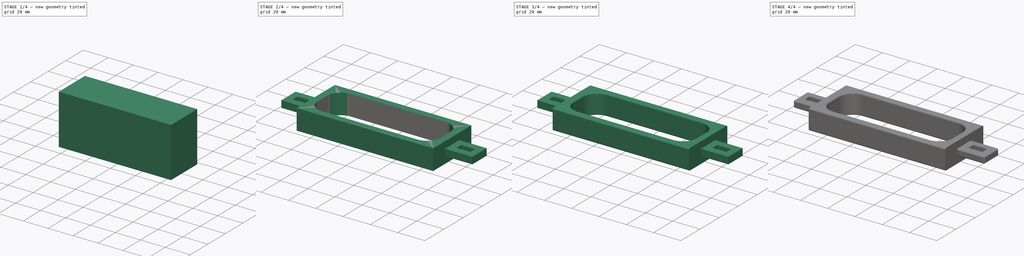
[diagram: build sequence overview — one tinted view per stage of 4, left to right]
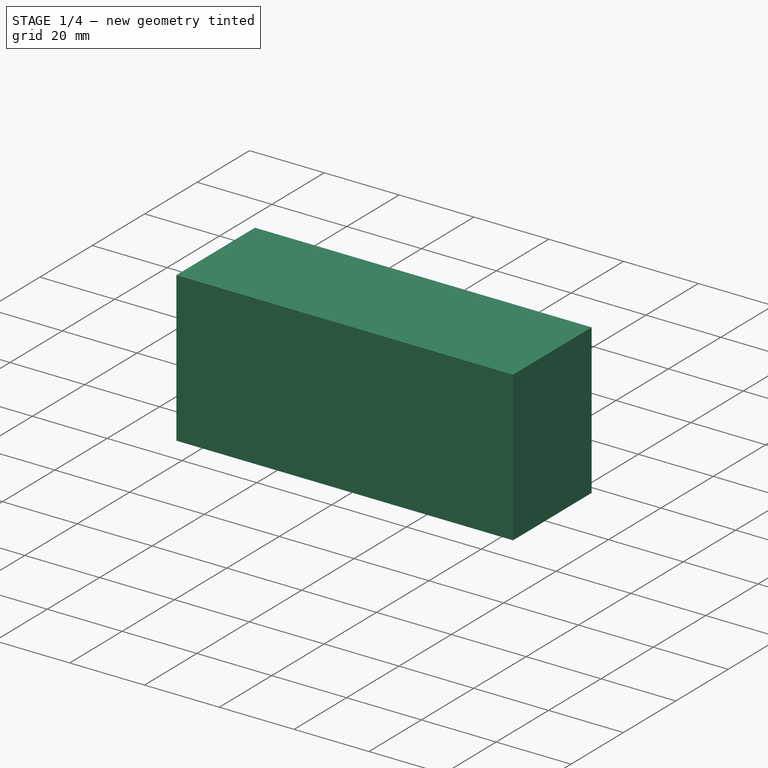
[diagram: stage 1 of 4 — iso view after this stage's code; geometry added in this stage tinted green]
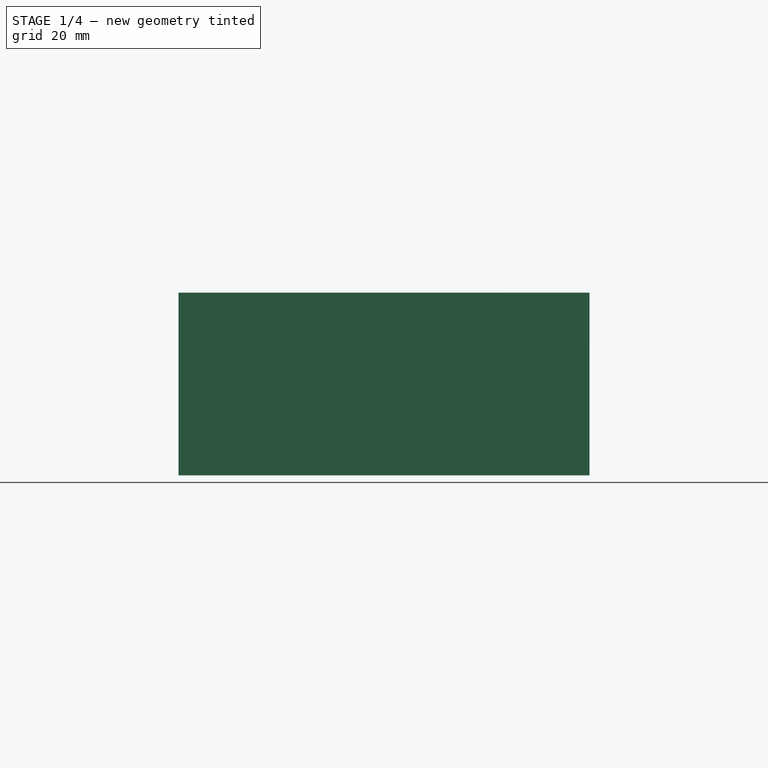
[diagram: stage 1 of 4 — front view after this stage's code; geometry added in this stage tinted green]
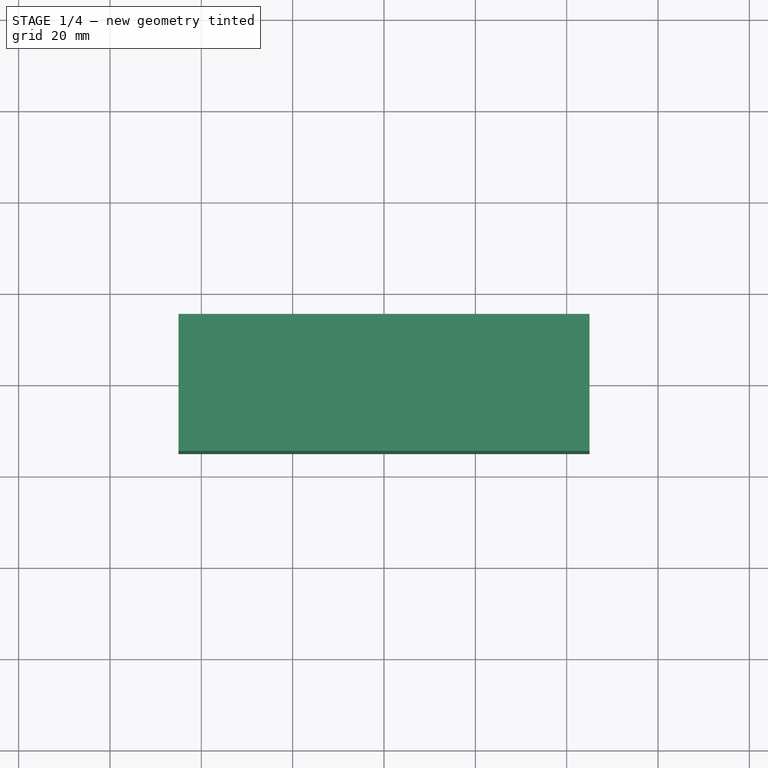
[diagram: stage 1 of 4 — top view after this stage's code; geometry added in this stage tinted green]
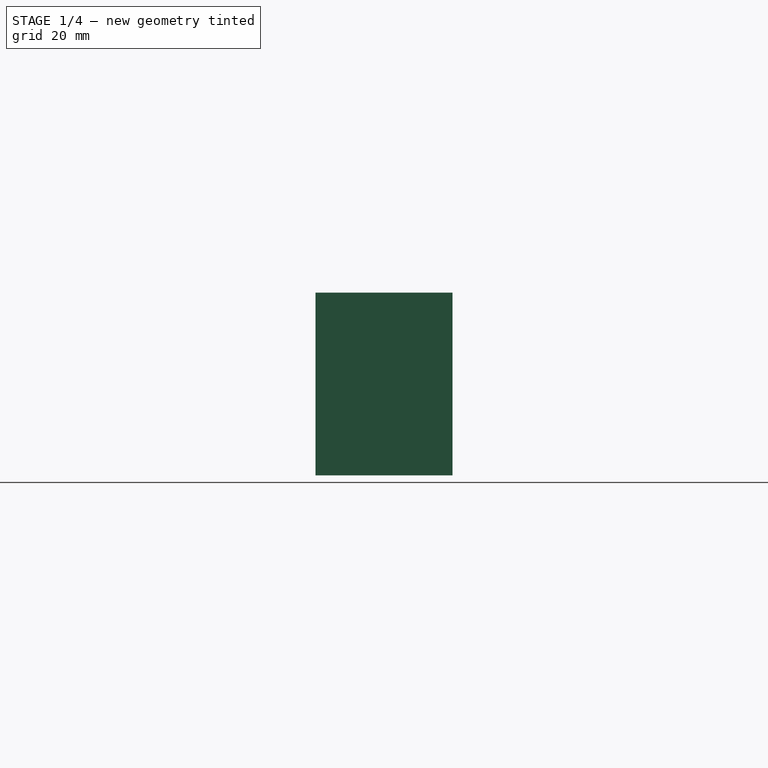
[diagram: stage 1 of 4 — right view after this stage's code; geometry added in this stage tinted green]
FCSTD DOCUMENT  (FreeCAD 1.0R39285 (Git))
Label: brace
License: All rights reserved
LicenseURL: https://en.wikipedia.org/wiki/All_rights_reserved
objects: Part::Fillet×5, Sketcher::SketchObject×3, Part::Extrusion×3, Part::Cut×1, Part::MultiFuse×1
note: 16 computed .brp shape members not serialized (recipe doc carries the construction recipe); baked Part::Feature solids carry a one-line shape summary decoded from their .brp
EXTERNAL_REF file=dims.FCStd obj=Spreadsheet

FEATURE [Sketcher::SketchObject] Sketch
  ArcFitTolerance = 1e-06
  FullyConstrained = true
  MakeInternals = false
  sketch-geometry (4):
    g0: LineSegment StartX=-50 StartY=-20 StartZ=0 EndX=50 EndY=-20 EndZ=0
    g1: LineSegment StartX=50 StartY=20 StartZ=0 EndX=-50 EndY=20 EndZ=0
    g2: LineSegment StartX=50 StartY=20 StartZ=0 EndX=50 EndY=-20 EndZ=0
    g3: LineSegment StartX=-50 StartY=20 StartZ=0 EndX=-50 EndY=-20 EndZ=0
  constraints (10):
    c: Horizontal(g0)
    c: Symmetric(g0,g1,g-1)
    c: Symmetric(g1,g1,g-2)
    c: DistanceX(g1,g1) = 100
    c: Coincident(g2,g1)
    c: Coincident(g2,g0)
    c: Coincident(g3,g1)
    c: Coincident(g3,g0)
    c: Vertical(g3)
    c: DistanceY(g3,g3) = 40
FEATURE [Sketcher::SketchObject] Sketch001
  ArcFitTolerance = 1e-06
  AttachmentSupport = -> [Sketch]
  ExternalGeometry = -> [Sketch]
  FullyConstrained = true
  MakeInternals = false
  MapMode = 2
  expr: Constraints[38] = dims#Spreadsheet.tab_height
  expr: Constraints[39] = dims#Spreadsheet.thickness
  expr: Constraints[40] = dims#Spreadsheet.thickness
  expr: Constraints[41] = dims#Spreadsheet.thickness * 3
  expr: Constraints[42] = dims#Spreadsheet.tab_height + dims#Spreadsheet.thickness * 2
  sketch-geometry (16):
    g0: LineSegment StartX=-70 StartY=7.5 StartZ=0 EndX=-70 EndY=-7.5 EndZ=0
    g1: LineSegment StartX=-70 StartY=-7.5 StartZ=0 EndX=-50 EndY=-7.5 EndZ=0
    g2: LineSegment StartX=-50 StartY=-7.5 StartZ=0 EndX=-50 EndY=7.5 EndZ=0
    g3: LineSegment StartX=-50 StartY=7.5 StartZ=0 EndX=-70 EndY=7.5 EndZ=0
    g4: LineSegment StartX=-65 StartY=2.5 StartZ=0 EndX=-65 EndY=-2.5 EndZ=0
    g5: LineSegment StartX=-65 StartY=-2.5 StartZ=0 EndX=-55 EndY=-2.5 EndZ=0
    g6: LineSegment StartX=-55 StartY=-2.5 StartZ=0 EndX=-55 EndY=2.5 EndZ=0
    g7: LineSegment StartX=-55 StartY=2.5 StartZ=0 EndX=-65 EndY=2.5 EndZ=0
    g8: LineSegment StartX=50 StartY=7.5 StartZ=0 EndX=50 EndY=-7.5 EndZ=0
    g9: LineSegment StartX=50 StartY=-7.5 StartZ=0 EndX=70 EndY=-7.5 EndZ=0
    g10: LineSegment StartX=70 StartY=-7.5 StartZ=0 EndX=70 EndY=7.5 EndZ=0
    g11: LineSegment StartX=70 StartY=7.5 StartZ=0 EndX=50 EndY=7.5 EndZ=0
    g12: LineSegment StartX=55 StartY=2.5 StartZ=0 EndX=55 EndY=-2.5 EndZ=0
    g13: LineSegment StartX=55 StartY=-2.5 StartZ=0 EndX=65 EndY=-2.5 EndZ=0
    g14: LineSegment StartX=65 StartY=-2.5 StartZ=0 EndX=65 EndY=2.5 EndZ=0
    g15: LineSegment StartX=65 StartY=2.5 StartZ=0 EndX=55 EndY=2.5 EndZ=0
  constraints (43):
    c: Coincident(g0,g1)
    c: Coincident(g1,g2)
    c: Coincident(g2,g3)
    c: Coincident(g3,g0)
    c: Vertical(g0)
    c: Horizontal(g1)
    c: Horizontal(g3)
    c: Coincident(g4,g5)
    c: Coincident(g5,g6)
    c: Coincident(g6,g7)
    c: Coincident(g7,g4)
    c: Vertical(g4)
    c: Horizontal(g5)
    c: Horizontal(g7)
    c: Symmetric(g2,g1,g-1)
    c: Symmetric(g6,g5,g-1)
    c: Coincident(g8,g9)
    c: Coincident(g9,g10)
    c: Coincident(g10,g11)
    c: Coincident(g11,g8)
    c: Vertical(g10)
    c: Horizontal(g9)
    c: Horizontal(g11)
    c: Coincident(g12,g13)
    c: Coincident(g13,g14)
    c: Coincident(g14,g15)
    c: Coincident(g15,g12)
    c: Vertical(g14)
    c: Horizontal(g13)
    c: Horizontal(g15)
    c: Symmetric(g8,g8,g-1)
    c: Symmetric(g12,g12,g-1)
    c: Equal(g10,g0)
    c: Vertical(g2,g-3)
    c: Vertical(g8,g-4)
    c: Equal(g11,g3)
    c: Equal(g7,g15)
    c: Symmetric(g6,g12,g-2)
    c: Distance(g7,g7) = 10
    c: Distance(g4,g4) = 5
    c: DistanceX(g6,g2) = 5
    c: Distance(g0,g0) = 15
    c: DistanceX(g3,g3) = 20
FEATURE [Part::Extrusion] Extrude
  Base = -> Sketch
  Dir = (0,0,1)
  DirMode = 2
  FaceMakerClass = Part::FaceMakerBullseye
  FaceMakerMode = 3
  LengthFwd = 15
  LengthRev = 0
  Solid = true
  Symmetric = true
  expr: LengthFwd = dims#Spreadsheet.thickness * 3
FEATURE [Sketcher::SketchObject] Sketch002
  ArcFitTolerance = 1e-06
  AttachmentSupport = -> [Extrude]
  ExternalGeometry = -> [Extrude]
  FullyConstrained = true
  MakeInternals = false
  MapMode = 5
  Placement = pos=(0,0,7.5) rot=(0,0,1;0rad)
  expr: Constraints[8] = dims#Spreadsheet.thickness
  expr: Constraints[9] = dims#Spreadsheet.thickness
  sketch-geometry (4):
    g0: LineSegment StartX=-45 StartY=15 StartZ=0 EndX=-45 EndY=-15 EndZ=0
    g1: LineSegment StartX=-45 StartY=-15 StartZ=0 EndX=45 EndY=-15 EndZ=0
    g2: LineSegment StartX=45 StartY=-15 StartZ=0 EndX=45 EndY=15 EndZ=0
    g3: LineSegment StartX=45 StartY=15 StartZ=0 EndX=-45 EndY=15 EndZ=0
  constraints (10):
    c: Coincident(g0,g1)
    c: Coincident(g1,g2)
    c: Coincident(g2,g3)
    c: Coincident(g3,g0)
    c: Vertical(g2)
    c: Horizontal(g1)
    c: Symmetric(g0,g2,g-2)
    c: Symmetric(g0,g0,g-1)
    c: DistanceX(g-4,g0) = 5
    c: DistanceY(g0,g-4) = 5
FEATURE [Part::Extrusion] Extrude002
  Base = -> Sketch002
  Dir = (0,0,1)
  DirMode = 2
  FaceMakerClass = Part::FaceMakerBullseye
  FaceMakerMode = 3
  LengthFwd = 40
  LengthRev = 0
  Placement = pos=(0,0,-28) rot=(0,0,1;0rad)
  Solid = true
  Symmetric = false
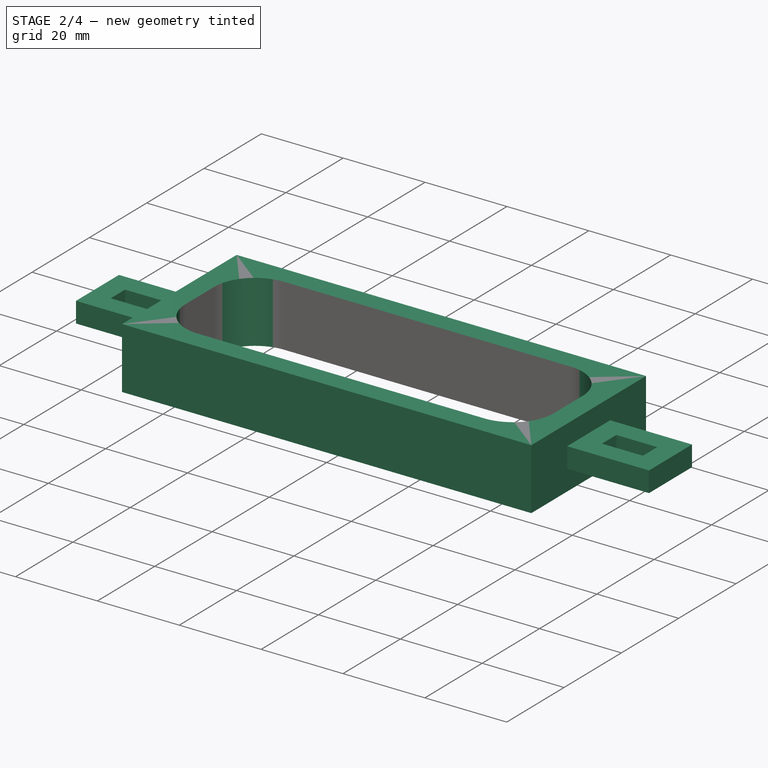
[diagram: stage 2 of 4 — iso view after this stage's code; geometry added in this stage tinted green]
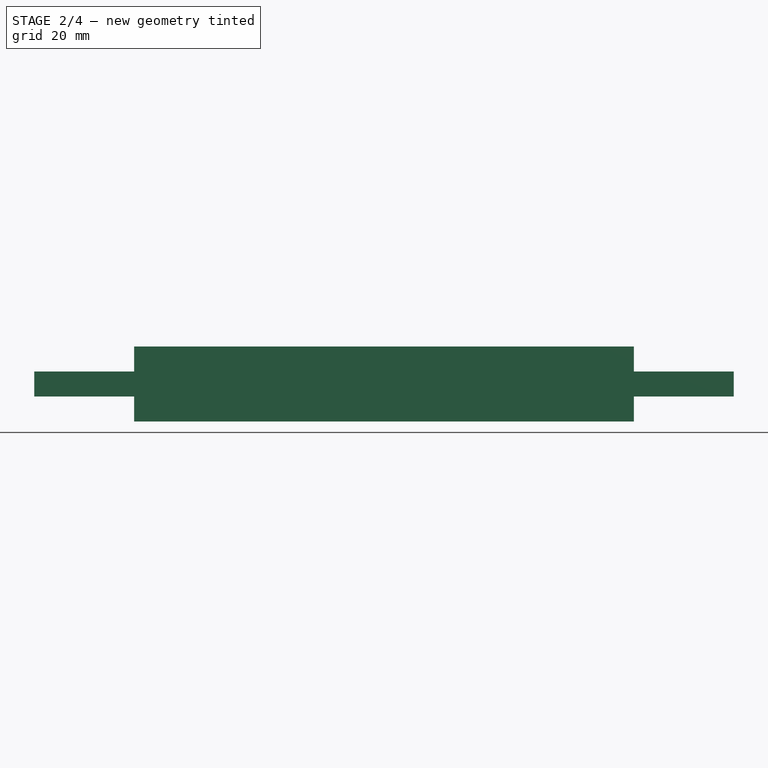
[diagram: stage 2 of 4 — front view after this stage's code; geometry added in this stage tinted green]
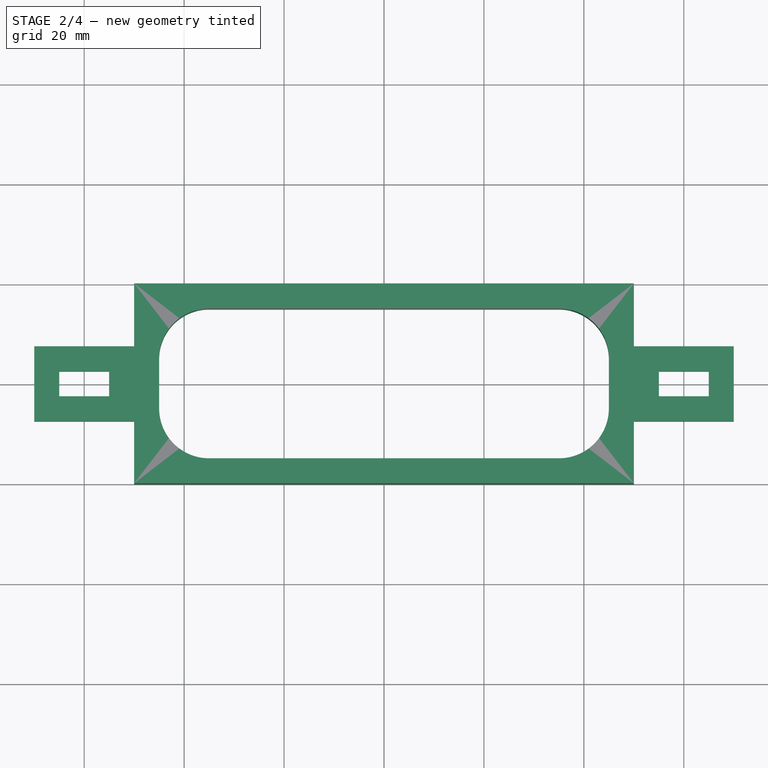
[diagram: stage 2 of 4 — top view after this stage's code; geometry added in this stage tinted green]
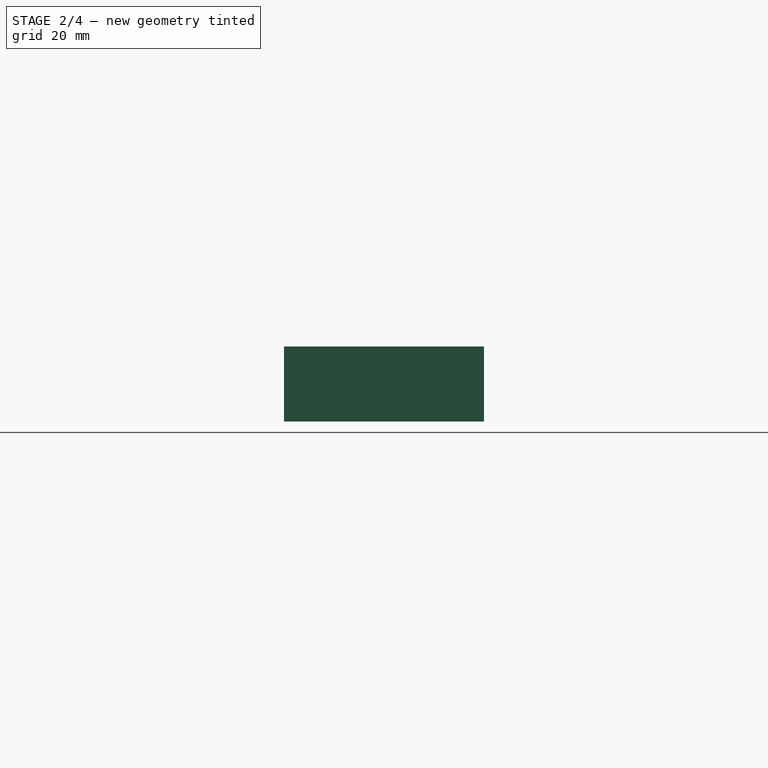
[diagram: stage 2 of 4 — right view after this stage's code; geometry added in this stage tinted green]
FEATURE [Part::Extrusion] Extrude001
  Base = -> Sketch001
  Dir = (0,0,1)
  DirMode = 2
  FaceMakerClass = Part::FaceMakerBullseye
  FaceMakerMode = 3
  LengthFwd = 5
  LengthRev = 0
  Solid = true
  Symmetric = true
  expr: LengthFwd = dims#Spreadsheet.thickness
FEATURE [Part::Cut] Cut
  Base = -> Extrude
  Refine = true
  Tool = -> Extrude002
FEATURE [Part::Fillet] Fillet
  Base = -> Cut
  EdgeLinks = -> Cut [Edge21,Edge22,Edge23,Edge24]
  Edges = 4 edges r=10: [Edge21,Edge22,Edge23,Edge24]
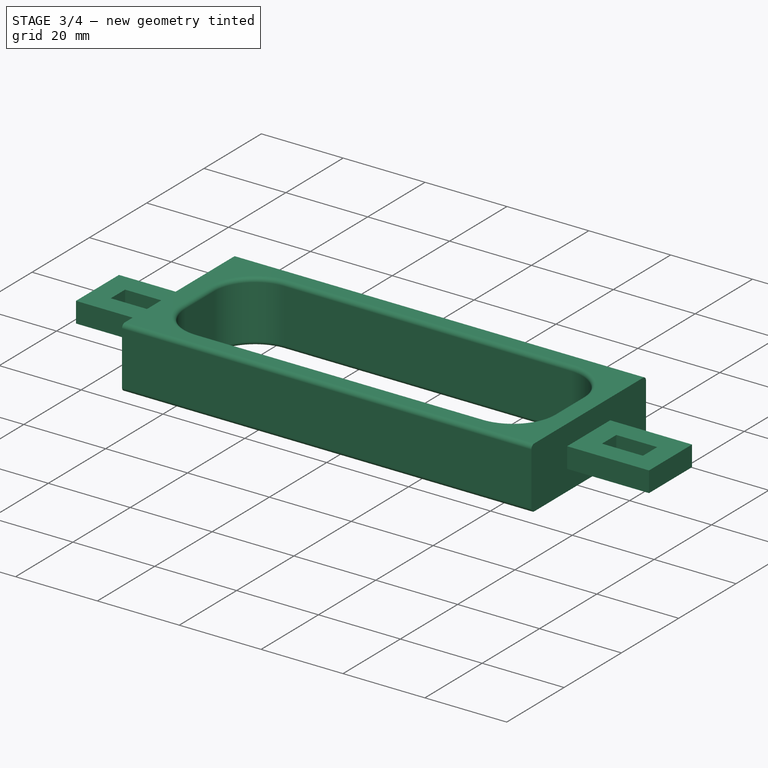
[diagram: stage 3 of 4 — iso view after this stage's code; geometry added in this stage tinted green]
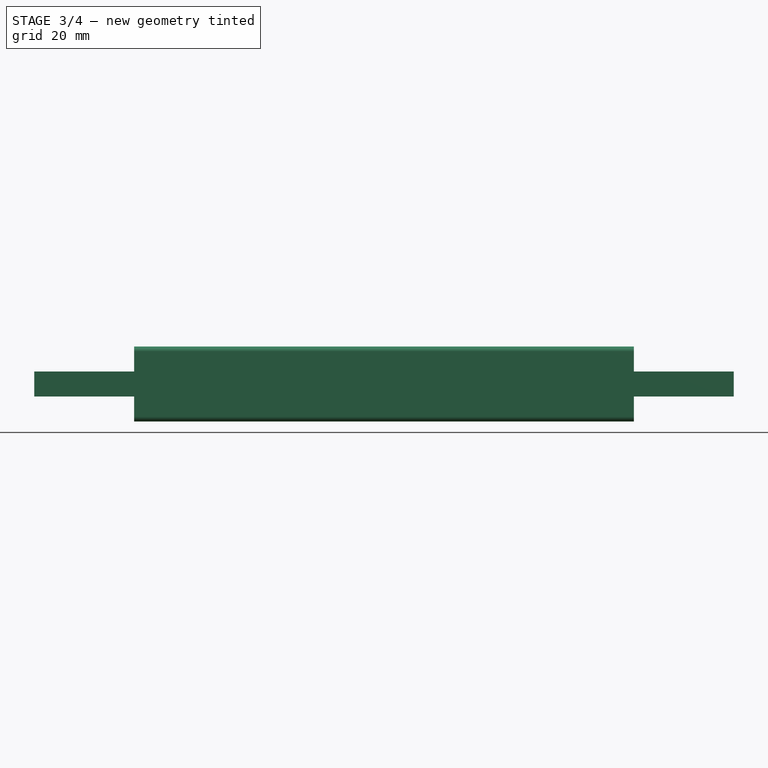
[diagram: stage 3 of 4 — front view after this stage's code; geometry added in this stage tinted green]
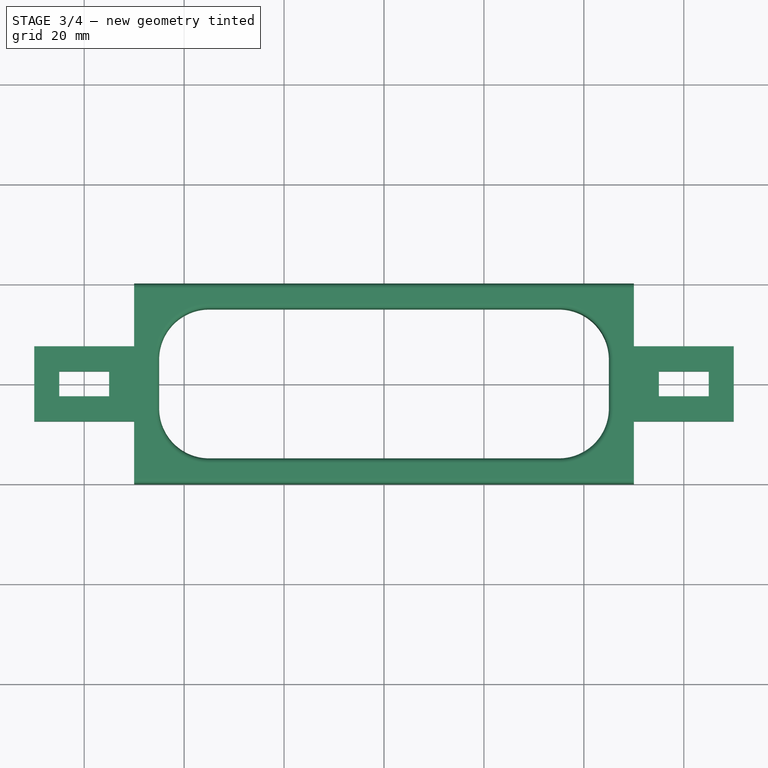
[diagram: stage 3 of 4 — top view after this stage's code; geometry added in this stage tinted green]
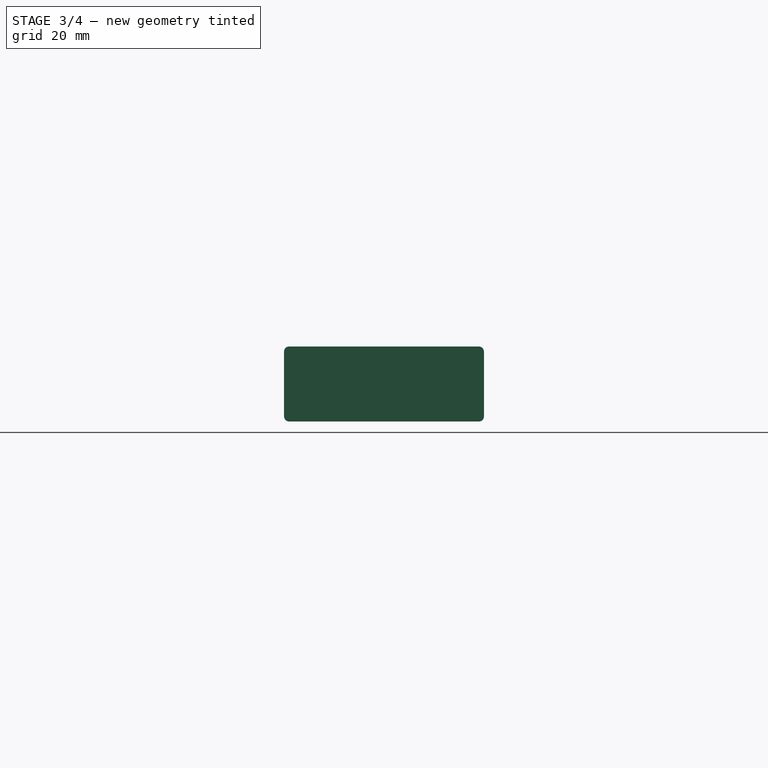
[diagram: stage 3 of 4 — right view after this stage's code; geometry added in this stage tinted green]
FEATURE [Part::MultiFuse] Fusion
  Refine = true
  Shapes = -> [Fillet,Extrude001]
FEATURE [Part::Fillet] Fillet001
  Base = -> Fusion
  EdgeLinks = -> Fusion [Edge9,Edge12,Edge31,Edge44]
  Edges = 4 edges r=1: [Edge9,Edge12,Edge31,Edge44]
FEATURE [Part::Fillet] Fillet002
  Base = -> Fillet001
  EdgeLinks = -> Fillet001 [Edge5,Edge6,Edge7,Edge8,Edge9,Edge10,Edge11,Edge12,Edge39,Edge41,Edge43,Edge45,Edge47,Edge49,Edge51,Edge52]
  Edges = 16 edges r=1: [Edge5,Edge6,Edge7,Edge8,Edge9,Edge10,Edge11,Edge12,Edge39,Edge41,Edge43,Edge45,Edge47,Edge49,Edge51,Edge52]
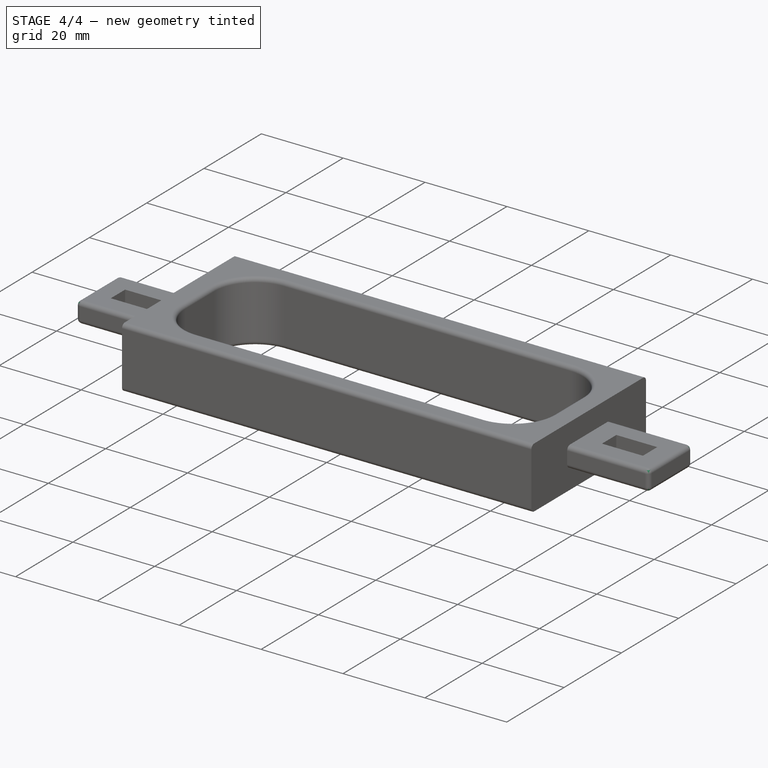
[diagram: stage 4 of 4 — iso view after this stage's code; geometry added in this stage tinted green]
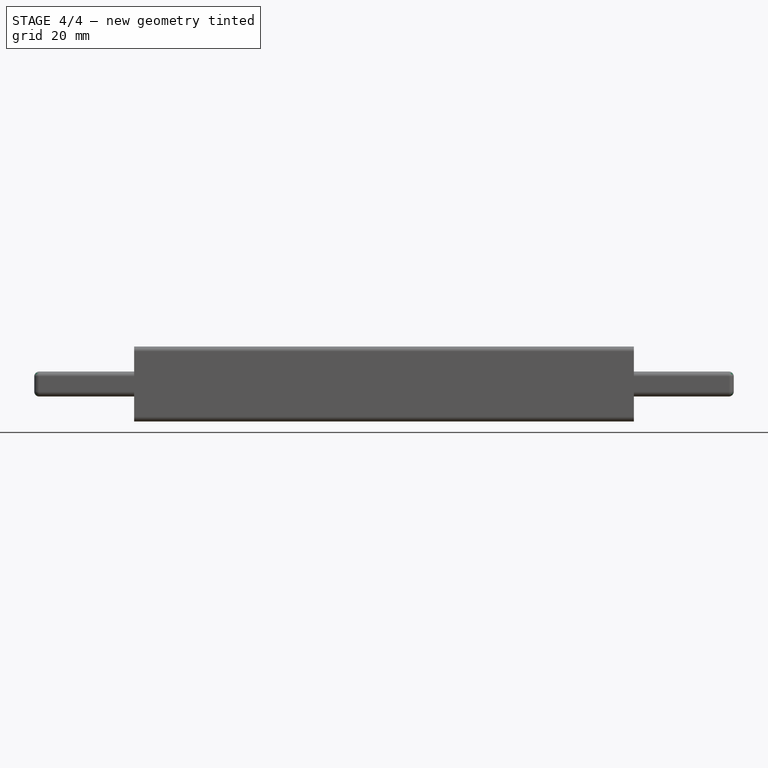
[diagram: stage 4 of 4 — front view after this stage's code; geometry added in this stage tinted green]
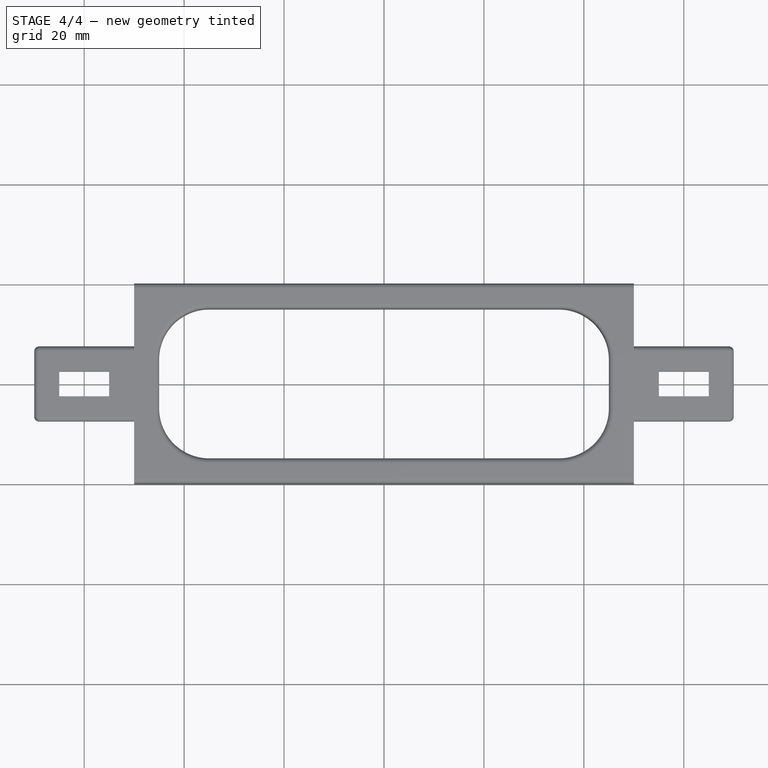
[diagram: stage 4 of 4 — top view after this stage's code; geometry added in this stage tinted green]
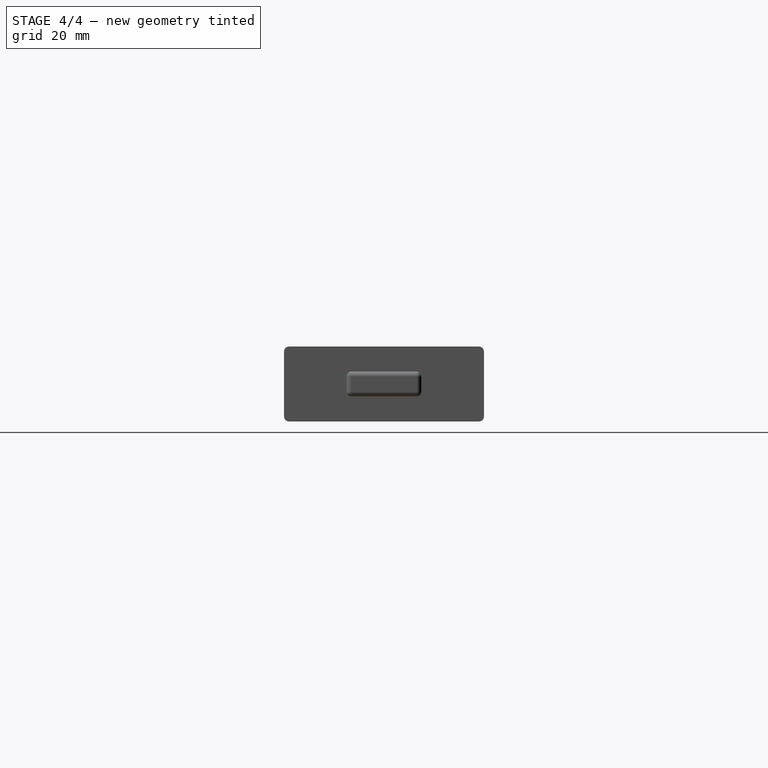
[diagram: stage 4 of 4 — right view after this stage's code; geometry added in this stage tinted green]
FEATURE [Part::Fillet] Fillet003
  Base = -> Fillet002
  EdgeLinks = -> Fillet002 [Edge97,Edge98,Edge99,Edge100,Edge101,Edge106,Edge107,Edge108]
  Edges = 8 edges r=1: [Edge97,Edge98,Edge99,Edge100,Edge101,Edge106,Edge107,Edge108]
FEATURE [Part::Fillet] Fillet004
  Base = -> Fillet003
  EdgeLinks = -> Fillet003 [Edge129,Edge130,Edge131,Edge136,Edge137,Edge138,Edge139,Edge144]
  Edges = 8 edges r=1: [Edge129,Edge130,Edge131,Edge136,Edge137,Edge138,Edge139,Edge144]
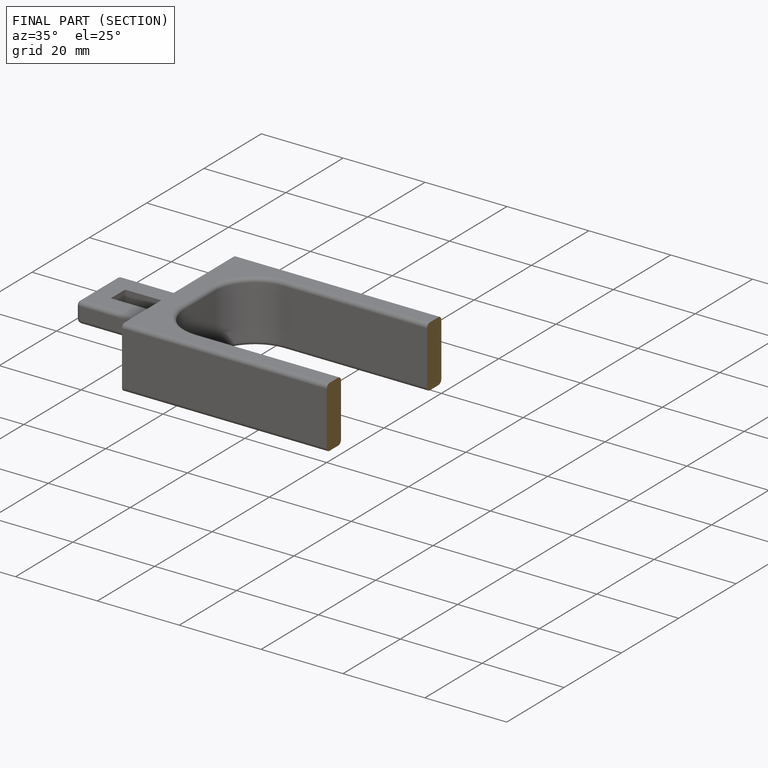
[diagram: finished part — half-section view (interior)]
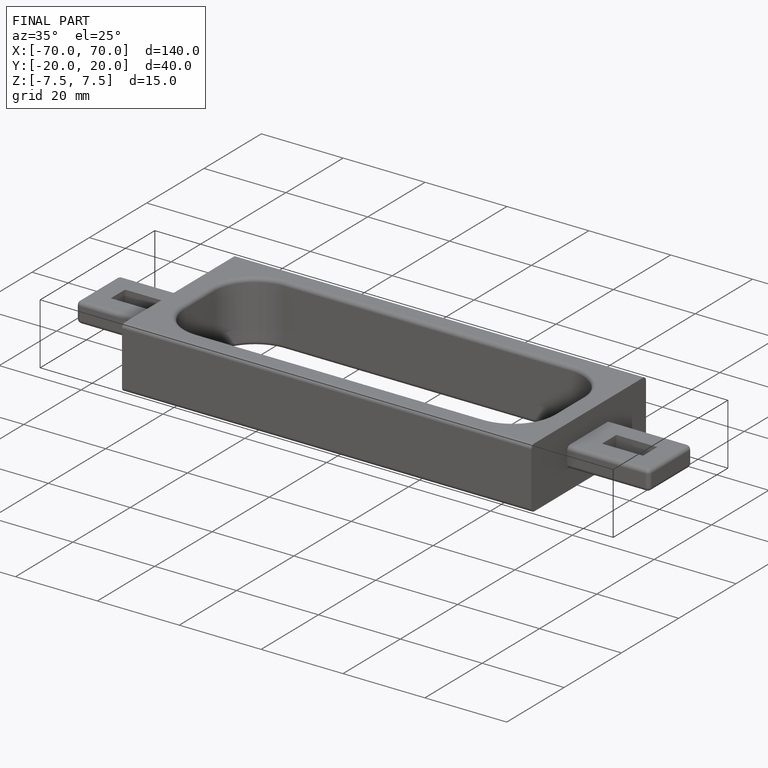
[diagram: finished part — iso view with bounding-box wireframe]
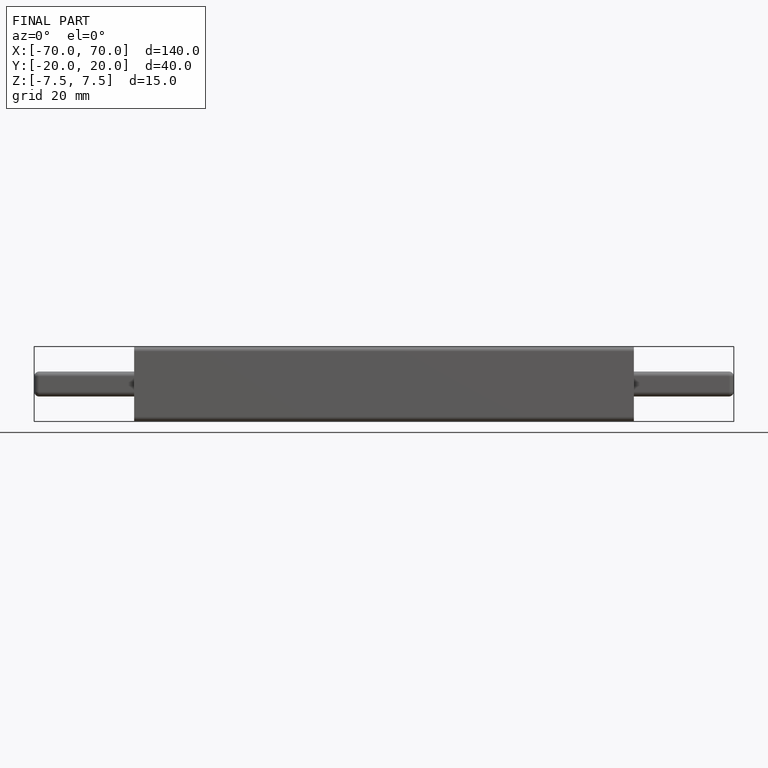
[diagram: finished part — front view with bounding-box wireframe]
